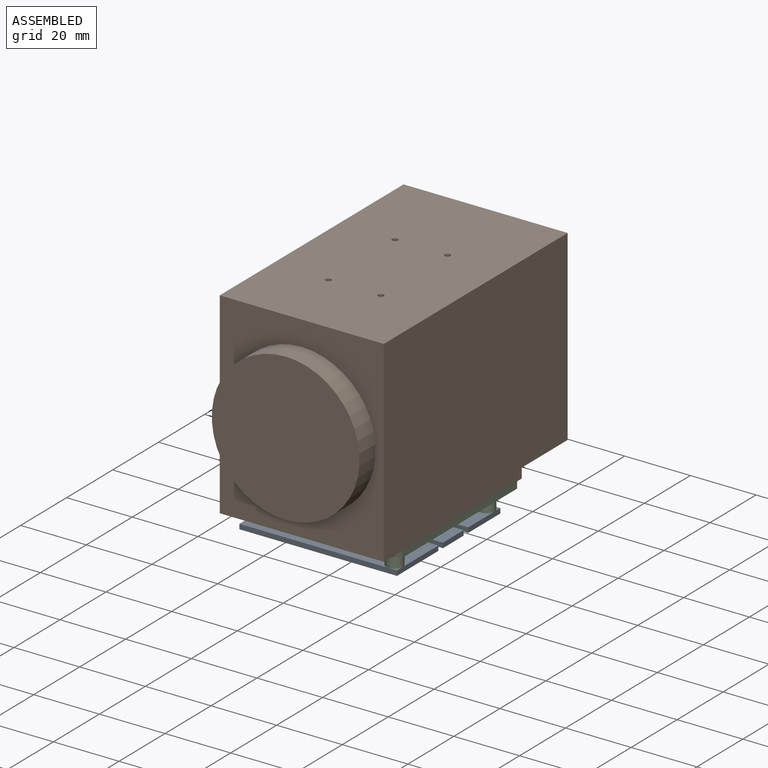
[diagram: assembled view]
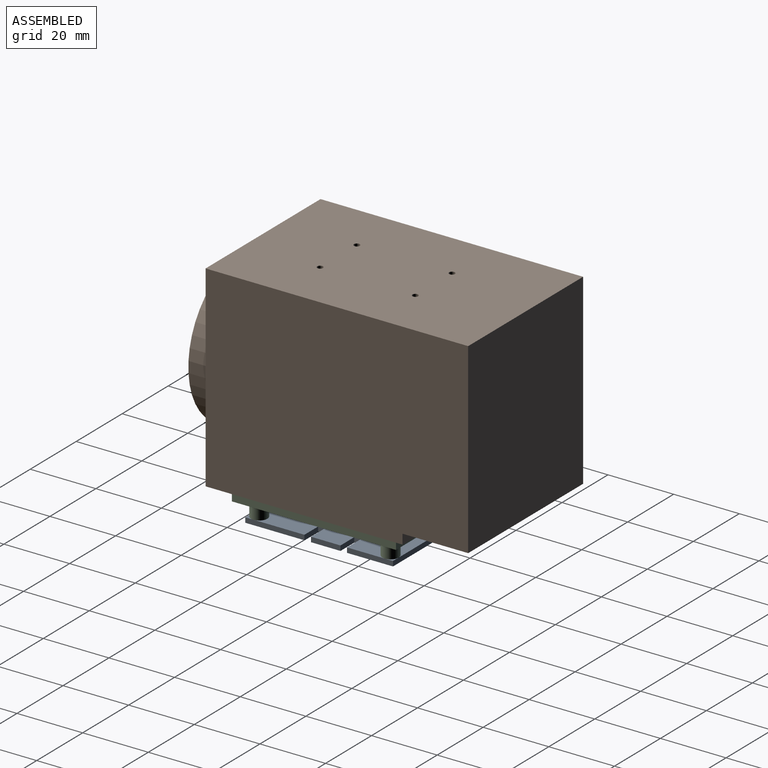
[diagram: assembled view, second angle]
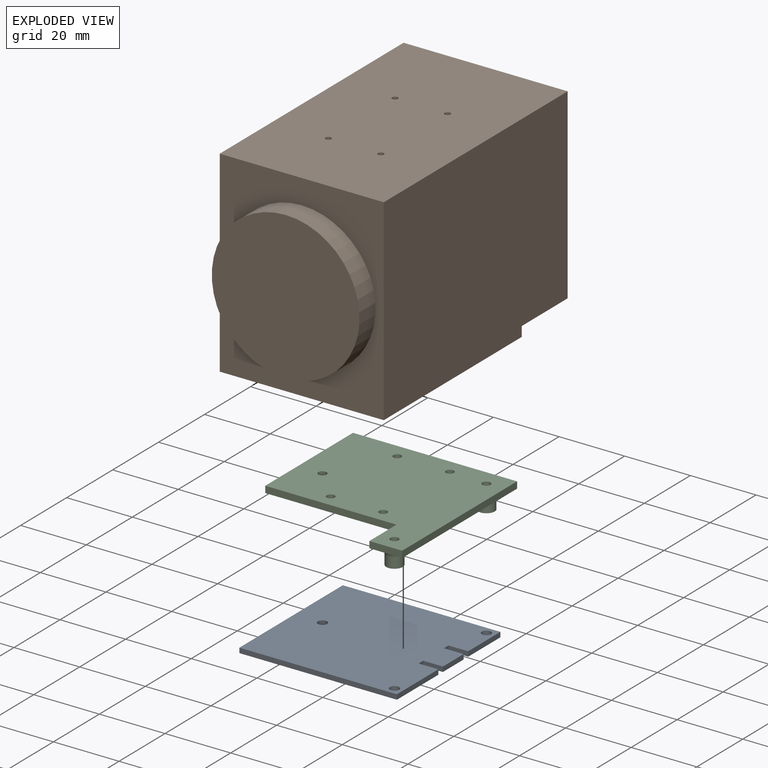
[diagram: exploded view]
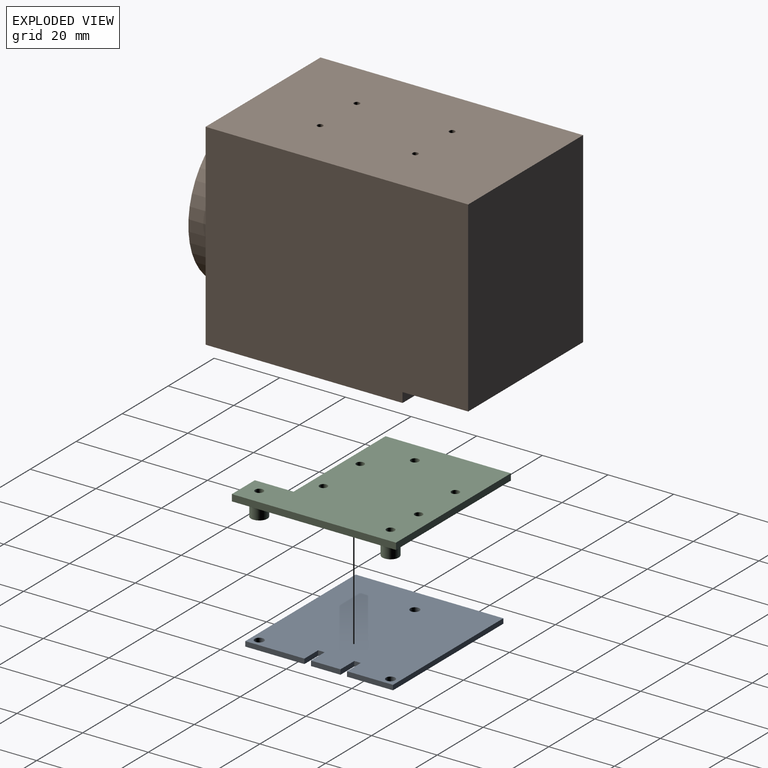
[diagram: exploded view, second angle]
ASSEMBLY  parts=3 mates=3
PART A: 17 faces, bbox 45x48x1.5 mm
  f0: plane 48x1.5mm, normal (-1,0,0), area 72mm2, adj f1,f11,f12,f13
  f1: plane 14x1.5mm, normal (0,-1,0), area 21mm2, adj f0,f2,f12,f13
  f2: plane 6x1.5mm, normal (1,0,0), area 9mm2, adj f1,f3,f12,f13
  f3: plane 2x1.5mm, normal (0,-1,0), area 3mm2, adj f2,f4,f12,f13
  f4: plane 6x1.5mm, normal (-1,0,0), area 9mm2, adj f3,f5,f12,f13
  f5: plane 9x1.5mm, normal (0,-1,0), area 13.5mm2, adj f4,f6,f12,f13
  f6: plane 6x1.5mm, normal (1,0,0), area 9mm2, adj f5,f7,f12,f13
  f7: plane 2x1.5mm, normal (0,-1,0), area 3mm2, adj f6,f8,f12,f13
  f8: plane 6x1.5mm, normal (-1,0,0), area 9mm2, adj f7,f9,f12,f13
  f9: plane 18x1.5mm, normal (0,-1,0), area 27mm2, adj f8,f10,f12,f13
  f10: plane 48x1.5mm, normal (1,0,0), area 72mm2, adj f9,f11,f12,f13
  f11: plane 45x1.5mm, normal (0,1,0), area 67.5mm2, adj f0,f10,f12,f13
  f12: plane 48x45mm, normal (0,0,1), area 2117.5mm2, adj f0,f1,f2,f3,f4,f5,f6,f7
  f13: plane 48x45mm, normal (0,0,-1), area 2117.5mm2, adj f0,f1,f2,f3,f4,f5,f6,f7
  f14: cylinder r=1.4mm len=2.8mm, axis (0,0,1), area 13.2mm2, adj f12,f13
  f15: cylinder r=1.4mm len=2.8mm, axis (0,0,1), area 13.2mm2, adj f12,f13
  f16: cylinder r=1.4mm len=2.8mm, axis (0,0,1), area 13.2mm2, adj f12,f13
PART B: 26 faces, bbox 50x87x60 mm
  f0: plane 80x50mm, normal (0,0,1), area 3990.4mm2, adj f1,f5,f6,f7,f17,f19,f21,f23
  f1: plane 60x50mm, normal (0,-1,0), area 1409.6mm2, adj f0,f2,f6,f7,f24
  f2: plane 60x50mm, normal (0,0,-1), area 2990.4mm2, adj f1,f3,f6,f7,f9,f11,f13,f15
  f3: plane 50x3mm, normal (0,1,0), area 150mm2, adj f2,f4,f6,f7
  f4: plane 50x20mm, normal (0,0,-1), area 1000mm2, adj f3,f5,f6,f7
  f5: plane 57x50mm, normal (0,1,0), area 2850mm2, adj f0,f4,f6,f7
  f6: plane 80x60mm, normal (1,0,0), area 4740mm2, adj f0,f1,f2,f3,f4,f5
  f7: plane 80x60mm, normal (-1,0,0), area 4740mm2, adj f0,f1,f2,f3,f4,f5
  f8: cone r=0mm half-angle=59deg, axis (0,0,-1), area 2.8mm2, adj f9
  f9: cylinder r=0.88mm len=12.75mm, axis (0,0,-1), area 70.1mm2, adj f2,f8
  f10: cone r=0mm half-angle=59deg, axis (0,0,-1), area 2.8mm2, adj f11
  f11: cylinder r=0.88mm len=12.75mm, axis (0,0,-1), area 70.1mm2, adj f2,f10
  f12: cone r=0mm half-angle=59deg, axis (0,0,-1), area 2.8mm2, adj f13
  f13: cylinder r=0.88mm len=12.75mm, axis (0,0,-1), area 70.1mm2, adj f2,f12
  f14: cone r=0mm half-angle=59deg, axis (0,0,-1), area 2.8mm2, adj f15
  f15: cylinder r=0.88mm len=12.75mm, axis (0,0,-1), area 70.1mm2, adj f2,f14
  f16: cone r=0mm half-angle=59deg, axis (0,0,1), area 2.8mm2, adj f17
  f17: cylinder r=0.88mm len=12.75mm, axis (0,0,1), area 70.1mm2, adj f0,f16
  f18: cone r=0mm half-angle=59deg, axis (0,0,1), area 2.8mm2, adj f19
  f19: cylinder r=0.88mm len=12.75mm, axis (0,0,1), area 70.1mm2, adj f0,f18
  f20: cone r=0mm half-angle=59deg, axis (0,0,1), area 2.8mm2, adj f21
  f21: cylinder r=0.88mm len=12.75mm, axis (0,0,1), area 70.1mm2, adj f0,f20
  f22: cone r=0mm half-angle=59deg, axis (0,0,1), area 2.8mm2, adj f23
  f23: cylinder r=0.88mm len=12.75mm, axis (0,0,1), area 70.1mm2, adj f0,f22
  f24: cylinder r=22.5mm len=45mm, axis (0,1,0), area 989.6mm2, adj f1,f25
  f25: plane 45x45mm, normal (0,-1,0), area 1590.4mm2, adj f24
PART C: 25 faces, bbox 50.9x52.8x7 mm
  f0: plane 50x50mm, normal (0,0,-1), area 1814.7mm2, adj f3,f4,f5,f6,f7,f8,f9,f19
  f1: plane 4.5x4.5mm, normal (0,0,-1), area 4.3mm2, adj f19,f23,f24
  f2: plane 50x50mm, normal (0,0,1), area 1995.2mm2, adj f3,f4,f5,f6,f7,f8,f9,f16
  f3: plane 50x2mm, normal (0,1,0), area 100mm2, adj f0,f2,f4,f5
  f4: plane 50x2mm, normal (1,0,0), area 100mm2, adj f0,f2,f3,f23
  f5: plane 38.2x2mm, normal (-1,0,0), area 76.4mm2, adj f0,f2,f3,f22
  f6: cylinder r=1.2mm len=2.4mm, axis (0,0,-1), area 15.1mm2, adj f0,f2
  f7: cylinder r=1.2mm len=2.4mm, axis (0,0,-1), area 15.1mm2, adj f0,f2
  f8: cylinder r=1.2mm len=2.4mm, axis (0,0,-1), area 15.1mm2, adj f0,f2
  f9: cylinder r=1.2mm len=2.4mm, axis (0,0,-1), area 15.1mm2, adj f0,f2
  f10: cylinder r=2.5mm len=5mm, axis (0,0,1), area 47.1mm2, adj f11,f19
  f11: plane 5x5mm, normal (0,0,-1), area 14.7mm2, adj f10,f18
  f12: cylinder r=2.5mm len=5mm, axis (0,0,1), area 47.1mm2, adj f13,f21
  f13: plane 5x5mm, normal (0,0,-1), area 14.7mm2, adj f12,f17
  f14: cylinder r=2.5mm len=5mm, axis (0,0,1), area 47.1mm2, adj f15,f20
  f15: plane 5x5mm, normal (0,0,-1), area 14.7mm2, adj f14,f16
  f16: cylinder r=1.25mm len=7mm, axis (0,0,-1), area 55mm2, adj f2,f15
  f17: cylinder r=1.25mm len=7mm, axis (0,0,-1), area 55mm2, adj f2,f13
  f18: cylinder r=1.25mm len=7mm, axis (0,0,-1), area 55mm2, adj f2,f11
  f19: torus R=4.5mm, axis (0,0,-1), area 63.7mm2, adj f0,f1,f10
  f20: torus R=4.5mm, axis (0,0,-1), area 63.7mm2, adj f0,f14
  f21: torus R=4.5mm, axis (0,0,-1), area 63.7mm2, adj f0,f12
  f22: plane 40x2mm, normal (0,-1,0), area 80mm2, adj f0,f2,f5,f24
  f23: plane 10x2mm, normal (0,-1,0), area 20mm2, adj f0,f1,f2,f4,f24
  f24: plane 11.8x2mm, normal (-1,0,0), area 23.6mm2, adj f0,f1,f2,f22,f23
PLACE A rot(axis=(-0.71,0.71,0),180deg) t=(-45.76,28.82,8.78)mm
PLACE B t=(-43.76,56.32,18.78)mm
PLACE C t=(-43.76,56.32,18.78)mm
MATE planar C.f2 <-> B.f2  axis (0,0,1) through (-42.63,33.78,15.78)mm
MATE planar C.f21 <-> A.f13  axis (0,0,-1) through (-24.26,48.82,8.78)mm
MATE cylindrical A.f14 <-> C.f16  axis (0,0,1) through (-61.26,30.32,8.78)mm
